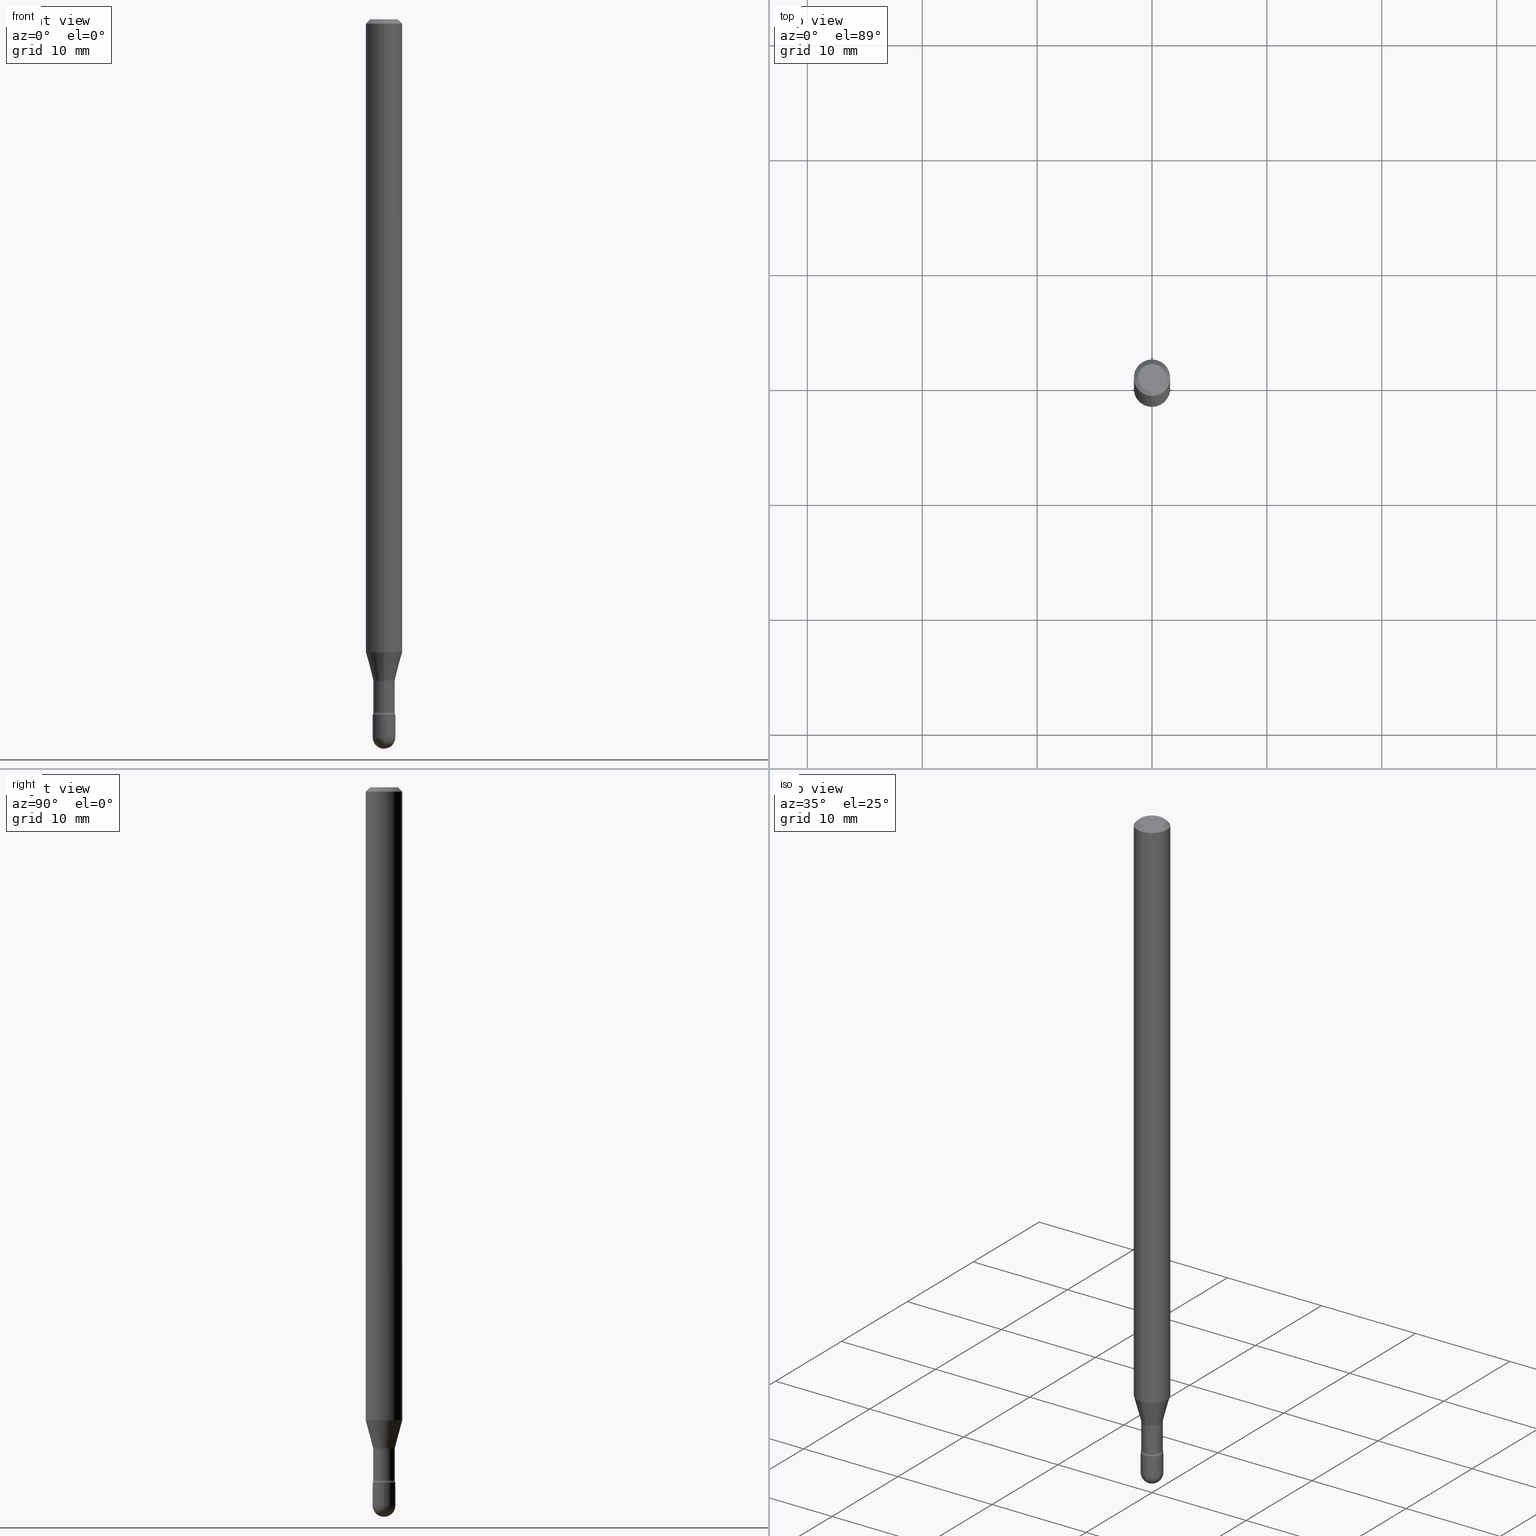
[diagram: canonical four-view strip — front | top / right | iso, engineering-drawing reading convention]
A machine part, canonical four-view strip (front | top / right | iso — engineering-drawing reading convention). The complete STEP part file that produces these views, byte-faithful:
ISO-10303-21;
HEADER;
FILE_DESCRIPTION (( 'STEP AP203' ),
    '1' );
FILE_NAME ('03822.STEP',
    '2024-04-09T20:36:44',
    ( '' ),
    ( '' ),
    'SwSTEP 2.0',
    'SolidWorks 2023',
    '' );
FILE_SCHEMA (( 'CONFIG_CONTROL_DESIGN' ));
ENDSEC;

DATA;
#1 = CYLINDRICAL_SURFACE ( 'NONE', #58, 0.06250000000000000000 ) ;
#2 = AXIS2_PLACEMENT_3D ( 'NONE', #217, #349, #523 ) ;
#3 = FACE_OUTER_BOUND ( 'NONE', #27, .T. ) ;
#4 = CARTESIAN_POINT ( 'NONE',  ( 0.03899999999999999994, -8.592535574892981353E-15, -2.383000000000000451 ) ) ;
#5 = DIRECTION ( 'NONE',  ( 6.982962677686265922E-15, 1.000000000000000000, 0.000000000000000000 ) ) ;
#6 = DIRECTION ( 'NONE',  ( -2.445434904435327590E-29, 3.491529888078439929E-15, 1.000000000000000000 ) ) ;
#7 = DIRECTION ( 'NONE',  ( 1.000000000000000000, -7.105427357601001070E-15, 4.926316103098738148E-29 ) ) ;
#8 = EDGE_LOOP ( 'NONE', ( #122, #476, #511, #38, #326 ) ) ;
#9 = CARTESIAN_POINT ( 'NONE',  ( 6.018298732021622035E-29, -8.592535574892982931E-15, -2.461000000000000298 ) ) ;
#10 = CARTESIAN_POINT ( 'NONE',  ( 6.018298732021622035E-29, -8.592535574892982931E-15, -2.461000000000000298 ) ) ;
#11 = CIRCLE ( 'NONE', #307, 0.03665000000000000202 ) ;
#12 = APPROVAL ( #236, 'UNSPECIFIED' ) ;
#13 = TOROIDAL_SURFACE ( 'NONE', #465, 0.05165000000000002228, 0.01499999999999999944 ) ;
#14 = CYLINDRICAL_SURFACE ( 'NONE', #214, 0.03899999999999999994 ) ;
#15 = DIRECTION ( 'NONE',  ( -2.445434904435327590E-29, 3.491529888078439535E-15, 1.000000000000000000 ) ) ;
#16 = DIRECTION ( 'NONE',  ( -2.445434904435327590E-29, 3.491529888078439929E-15, 1.000000000000000000 ) ) ;
#17 = DIRECTION ( 'NONE',  ( -6.982962677686266711E-15, -1.000000000000000000, 3.491529888078439929E-15 ) ) ;
#18 = LINE ( 'NONE', #61, #69 ) ;
#19 = AXIS2_PLACEMENT_3D ( 'NONE', #9, #126, #532 ) ;
#20 = ORGANIZATION ( 'UNSPECIFIED', 'UNSPECIFIED', '' ) ;
#21 = VERTEX_POINT ( 'NONE', #512 ) ;
#22 = EDGE_CURVE ( 'NONE', #282, #163, #403, .T. ) ;
#23 =( CONVERSION_BASED_UNIT ( 'INCH', #240 ) LENGTH_UNIT ( ) NAMED_UNIT ( #529 ) );
#24 = VERTEX_POINT ( 'NONE', #199 ) ;
#25 = ORIENTED_EDGE ( 'NONE', *, *, #493, .T. ) ;
#26 = CARTESIAN_POINT ( 'NONE',  ( 6.018298732021620914E-29, -8.592535574892981353E-15, -2.460999999999999854 ) ) ;
#27 = EDGE_LOOP ( 'NONE', ( #193, #505 ) ) ;
#28 = EDGE_LOOP ( 'NONE', ( #246, #423, #105, #556 ) ) ;
#29 = EDGE_CURVE ( 'NONE', #60, #460, #161, .T. ) ;
#30 = DIRECTION ( 'NONE',  ( 1.000000000000000000, 0.000000000000000000, 0.000000000000000000 ) ) ;
#31 = EDGE_LOOP ( 'NONE', ( #470, #284, #280, #376 ) ) ;
#32 = CIRCLE ( 'NONE', #241, 0.03665000000000002284 ) ;
#33 = AXIS2_PLACEMENT_3D ( 'NONE', #549, #15, #535 ) ;
#34 = DIRECTION ( 'NONE',  ( 1.000000000000000000, -6.982962677686282488E-15, 0.000000000000000000 ) ) ;
#35 = VERTEX_POINT ( 'NONE', #47 ) ;
#36 = AXIS2_PLACEMENT_3D ( 'NONE', #120, #419, #34 ) ;
#37 = CONICAL_SURFACE ( 'NONE', #520, 0.03716111260566398039, 0.2617993877991502405 ) ;
#38 = ORIENTED_EDGE ( 'NONE', *, *, #123, .F. ) ;
#39 = CARTESIAN_POINT ( 'NONE',  ( -4.364351673553387171E-16, -0.06250000000000760503, -2.169526486624344663 ) ) ;
#40 = DIRECTION ( 'NONE',  ( -2.445434904435327590E-29, 3.491529888078439929E-15, 1.000000000000000000 ) ) ;
#41 = FACE_OUTER_BOUND ( 'NONE', #230, .T. ) ;
#42 = AXIS2_PLACEMENT_3D ( 'NONE', #136, #133, #479 ) ;
#43 = CARTESIAN_POINT ( 'NONE',  ( 5.536690830740902119E-29, -7.905146639364552909E-15, -2.264092501787273282 ) ) ;
#44 = COORDINATED_UNIVERSAL_TIME_OFFSET ( 5, 0, .BEHIND. ) ;
#45 = CARTESIAN_POINT ( 'NONE',  ( 5.546184707643297071E-29, -7.918701755838243943E-15, -2.267974787463811204 ) ) ;
#46 = ORIENTED_EDGE ( 'NONE', *, *, #119, .F. ) ;
#47 = CARTESIAN_POINT ( 'NONE',  ( -0.03899999999999999994, -8.179256135731659234E-15, -2.383000000000000451 ) ) ;
#48 = DIRECTION ( 'NONE',  ( -2.445434904435327590E-29, 3.491529888078439535E-15, 1.000000000000000000 ) ) ;
#49 = CARTESIAN_POINT ( 'NONE',  ( 3.668152356653011563E-31, -5.237294832117688835E-17, -0.01500000000000008271 ) ) ;
#50 = CYLINDRICAL_SURFACE ( 'NONE', #2, 0.03665000000000000896 ) ;
#51 = DIRECTION ( 'NONE',  ( 6.982962677686265922E-15, 1.000000000000000000, 0.000000000000000000 ) ) ;
#52 = DIRECTION ( 'NONE',  ( -6.982962677686265133E-15, -1.000000000000000000, 0.000000000000000000 ) ) ;
#53 = AXIS2_PLACEMENT_3D ( 'NONE', #181, #497, #417 ) ;
#54 = DIRECTION ( 'NONE',  ( -2.445468806185136597E-29, 3.491481338843145583E-15, 1.000000000000000000 ) ) ;
#55 =( LENGTH_UNIT ( ) NAMED_UNIT ( * ) SI_UNIT ( $, .METRE. ) );
#56 = CARTESIAN_POINT ( 'NONE',  ( -3.773273898774340269E-16, -0.04749999999999999362, 8.310294370085693311E-17 ) ) ;
#57 = CARTESIAN_POINT ( 'NONE',  ( 5.546261595957115076E-29, -7.918591647396645864E-15, -2.267974787463811204 ) ) ;
#58 = AXIS2_PLACEMENT_3D ( 'NONE', #473, #297, #305 ) ;
#59 = VECTOR ( 'NONE', #494, 39.37007874015748143 ) ;
#60 = VERTEX_POINT ( 'NONE', #39 ) ;
#61 = CARTESIAN_POINT ( 'NONE',  ( 2.640455861472316653E-16, 0.03716111260565607699, -2.264092501787273282 ) ) ;
#62 = EDGE_CURVE ( 'NONE', #418, #65, #247, .T. ) ;
#63 = ORIENTED_EDGE ( 'NONE', *, *, #96, .T. ) ;
#64 = PERSON_AND_ORGANIZATION ( #88, #20 ) ;
#65 = VERTEX_POINT ( 'NONE', #167 ) ;
#66 = ORIENTED_EDGE ( 'NONE', *, *, #80, .F. ) ;
#67 = ORIENTED_EDGE ( 'NONE', *, *, #22, .T. ) ;
#68 = CLOSED_SHELL ( 'NONE', ( #534, #258, #544, #201, #137, #390, #185, #484, #184, #469, #367, #502, #555, #483 ) ) ;
#69 = VECTOR ( 'NONE', #269, 39.37007874015748143 ) ;
#70 = ORIENTED_EDGE ( 'NONE', *, *, #29, .F. ) ;
#71 = APPROVAL_STATUS ( 'not_yet_approved' ) ;
#72 = ORIENTED_EDGE ( 'NONE', *, *, #332, .F. ) ;
#73 = EDGE_CURVE ( 'NONE', #460, #60, #114, .T. ) ;
#74 = APPROVAL_ROLE ( '' ) ;
#75 = EDGE_CURVE ( 'NONE', #189, #35, #144, .T. ) ;
#76 = ORIENTED_EDGE ( 'NONE', *, *, #158, .F. ) ;
#77 = AXIS2_PLACEMENT_3D ( 'NONE', #264, #444, #51 ) ;
#78 = CIRCLE ( 'NONE', #323, 0.03900000000000000688 ) ;
#79 = DIRECTION ( 'NONE',  ( -2.445434904435327590E-29, 3.491529888078439535E-15, 1.000000000000000000 ) ) ;
#80 = EDGE_CURVE ( 'NONE', #235, #65, #11, .T. ) ;
#81 = CARTESIAN_POINT ( 'NONE',  ( 4.440892098500625669E-16, 0.06250000000000000000, 2.598527808863436170E-16 ) ) ;
#82 = DIRECTION ( 'NONE',  ( -2.445468806185136597E-29, 3.491481338843145583E-15, 1.000000000000000000 ) ) ;
#83 = CARTESIAN_POINT ( 'NONE',  ( 2.604139126560767818E-16, 0.03665000000000000896, 3.501088284931711933E-16 ) ) ;
#84 = FACE_OUTER_BOUND ( 'NONE', #566, .T. ) ;
#85 = CARTESIAN_POINT ( 'NONE',  ( -2.559255821371461762E-16, -0.03665000000000791930, -2.267974787463811204 ) ) ;
#86 = LOCAL_TIME ( 16, 36, 44.00000000000000000, #294 ) ;
#87 = CARTESIAN_POINT ( 'NONE',  ( 5.827552165139180878E-29, -8.320200030463215753E-15, -2.383000000000000451 ) ) ;
#88 = PERSON ( 'UNSPECIFIED', 'UNSPECIFIED', 'UNSPECIFIED', ('UNSPECIFIED'), ('UNSPECIFIED'), ('UNSPECIFIED') ) ;
#89 = FACE_OUTER_BOUND ( 'NONE', #164, .T. ) ;
#90 = CARTESIAN_POINT ( 'NONE',  ( 2.687627898013161054E-16, 0.03664999999999172392, -2.374939137763241614 ) ) ;
#91 = CARTESIAN_POINT ( 'NONE',  ( -2.594946623865928147E-16, -0.03716111260567189073, -2.264092501787273282 ) ) ;
#92 = SPHERICAL_SURFACE ( 'NONE', #77, 0.03899999999999989586 ) ;
#93 = FACE_OUTER_BOUND ( 'NONE', #154, .T. ) ;
#94 = CARTESIAN_POINT ( 'NONE',  ( 4.440892098501160615E-16, 0.06249999999999995837, -0.01500000000000030129 ) ) ;
#95 = AXIS2_PLACEMENT_3D ( 'NONE', #434, #478, #308 ) ;
#96 = EDGE_CURVE ( 'NONE', #203, #163, #393, .T. ) ;
#97 = CARTESIAN_POINT ( 'NONE',  ( -1.169113584055446105E-44, 1.669184350826100908E-30, 4.780733988912460139E-16 ) ) ;
#98 = CARTESIAN_POINT ( 'NONE',  ( 5.536690830740902119E-29, -7.905146639364552909E-15, -2.264092501787273282 ) ) ;
#99 = DIRECTION ( 'NONE',  ( -2.445434904435327590E-29, 3.491529888078439535E-15, 1.000000000000000000 ) ) ;
#100 = PERSON_AND_ORGANIZATION ( #88, #20 ) ;
#101 = ORIENTED_EDGE ( 'NONE', *, *, #546, .F. ) ;
#102 = FACE_OUTER_BOUND ( 'NONE', #464, .T. ) ;
#103 = PERSON_AND_ORGANIZATION ( #88, #20 ) ;
#104 = AXIS2_PLACEMENT_3D ( 'NONE', #260, #396, #440 ) ;
#105 = ORIENTED_EDGE ( 'NONE', *, *, #254, .T. ) ;
#106 = LOCAL_TIME ( 16, 36, 44.00000000000000000, #428 ) ;
#107 = CC_DESIGN_PERSON_AND_ORGANIZATION_ASSIGNMENT ( #559, #435, ( #449 ) ) ;
#108 = DIRECTION ( 'NONE',  ( -2.445434904435327590E-29, 3.491529888078439535E-15, 1.000000000000000000 ) ) ;
#109 = APPROVAL_ROLE ( '' ) ;
#110 = EDGE_LOOP ( 'NONE', ( #386, #238, #70, #374 ) ) ;
#111 = ORIENTED_EDGE ( 'NONE', *, *, #408, .F. ) ;
#112 = EDGE_LOOP ( 'NONE', ( #334, #128, #415, #379 ) ) ;
#113 = ORIENTED_EDGE ( 'NONE', *, *, #346, .F. ) ;
#114 = CIRCLE ( 'NONE', #552, 0.06250000000000000000 ) ;
#115 = ORIENTED_EDGE ( 'NONE', *, *, #461, .F. ) ;
#116 = TOROIDAL_SURFACE ( 'NONE', #196, 0.05165000000000002228, 0.01499999999999999944 ) ;
#117 = ORIENTED_EDGE ( 'NONE', *, *, #385, .F. ) ;
#118 = APPROVAL_STATUS ( 'not_yet_approved' ) ;
#119 = EDGE_CURVE ( 'NONE', #420, #127, #342, .T. ) ;
#120 = CARTESIAN_POINT ( 'NONE',  ( 6.018298732021620914E-29, -8.592535574892981353E-15, -2.460999999999999854 ) ) ;
#121 = PERSON_AND_ORGANIZATION ( #88, #20 ) ;
#122 = ORIENTED_EDGE ( 'NONE', *, *, #548, .T. ) ;
#123 = EDGE_CURVE ( 'NONE', #292, #189, #259, .T. ) ;
#124 = VECTOR ( 'NONE', #6, 39.37007874015748143 ) ;
#125 = CIRCLE ( 'NONE', #501, 0.03665000000000000202 ) ;
#126 = DIRECTION ( 'NONE',  ( -1.000000000000000000, 7.105427357601001070E-15, -4.926315508542082329E-29 ) ) ;
#127 = VERTEX_POINT ( 'NONE', #527 ) ;
#128 = ORIENTED_EDGE ( 'NONE', *, *, #281, .F. ) ;
#129 = DIRECTION ( 'NONE',  ( 1.000000000000000000, -6.982962677686258033E-15, 0.000000000000000000 ) ) ;
#130 = DIRECTION ( 'NONE',  ( -6.982962677686265133E-15, -1.000000000000000000, 0.000000000000000000 ) ) ;
#131 = DIRECTION ( 'NONE',  ( -2.445434904435327590E-29, 3.491529888078439535E-15, 1.000000000000000000 ) ) ;
#132 = DIRECTION ( 'NONE',  ( 6.982962677686265922E-15, 1.000000000000000000, 0.000000000000000000 ) ) ;
#133 = DIRECTION ( 'NONE',  ( -2.445434904435327590E-29, 3.491529888078439535E-15, 1.000000000000000000 ) ) ;
#134 = LINE ( 'NONE', #81, #124 ) ;
#135 = VECTOR ( 'NONE', #251, 39.37007874015748143 ) ;
#136 = CARTESIAN_POINT ( 'NONE',  ( 5.827471377269386118E-29, -8.320315723290922059E-15, -2.383000000000000451 ) ) ;
#137 = ADVANCED_FACE ( 'NONE', ( #302 ), #1, .T. ) ;
#138 = DIRECTION ( 'NONE',  ( -6.982962677686265133E-15, -1.000000000000000000, 0.000000000000000000 ) ) ;
#139 = DIRECTION ( 'NONE',  ( 1.000000000000000000, -6.982962677686282488E-15, 0.000000000000000000 ) ) ;
#140 = CARTESIAN_POINT ( 'NONE',  ( -4.364351673553912750E-16, -0.06250000000000005551, -0.01499999999999986587 ) ) ;
#141 = EDGE_CURVE ( 'NONE', #21, #235, #528, .T. ) ;
#142 = AXIS2_PLACEMENT_3D ( 'NONE', #522, #79, #138 ) ;
#143 = DIRECTION ( 'NONE',  ( -6.982962677686265922E-15, -1.000000000000000000, 3.491529888078439535E-15 ) ) ;
#144 = CIRCLE ( 'NONE', #412, 0.03899999999999999994 ) ;
#145 = AXIS2_PLACEMENT_3D ( 'NONE', #411, #226, #366 ) ;
#146 =( NAMED_UNIT ( * ) PLANE_ANGLE_UNIT ( ) SI_UNIT ( $, .RADIAN. ) );
#147 = ORIENTED_EDGE ( 'NONE', *, *, #119, .T. ) ;
#148 = DIRECTION ( 'NONE',  ( -6.982962677686265922E-15, -1.000000000000000000, 3.491529888078439535E-15 ) ) ;
#149 = MECHANICAL_CONTEXT ( 'NONE', #391, 'mechanical' ) ;
#150 = CARTESIAN_POINT ( 'NONE',  ( 4.364351673553919652E-16, 0.06249999999999995143, -0.01500000000000030129 ) ) ;
#151 = DIRECTION ( 'NONE',  ( -6.982962677686266711E-15, -1.000000000000000000, 3.491529888078439929E-15 ) ) ;
#152 = VECTOR ( 'NONE', #306, 39.37007874015748143 ) ;
#153 = AXIS2_PLACEMENT_3D ( 'NONE', #10, #303, #132 ) ;
#154 = EDGE_LOOP ( 'NONE', ( #468, #188, #66, #157 ) ) ;
#155 = ORIENTED_EDGE ( 'NONE', *, *, #273, .F. ) ;
#156 = ORIENTED_EDGE ( 'NONE', *, *, #346, .T. ) ;
#157 = ORIENTED_EDGE ( 'NONE', *, *, #359, .F. ) ;
#158 = EDGE_CURVE ( 'NONE', #460, #542, #134, .T. ) ;
#159 = ORIENTED_EDGE ( 'NONE', *, *, #166, .T. ) ;
#160 = CALENDAR_DATE ( 2024, 9, 4 ) ;
#161 = CIRCLE ( 'NONE', #195, 0.06250000000000000000 ) ;
#162 = AXIS2_PLACEMENT_3D ( 'NONE', #170, #486, #352 ) ;
#163 = VERTEX_POINT ( 'NONE', #388 ) ;
#164 = EDGE_LOOP ( 'NONE', ( #382, #244, #243, #156 ) ) ;
#165 = ORIENTED_EDGE ( 'NONE', *, *, #363, .T. ) ;
#166 = EDGE_CURVE ( 'NONE', #561, #542, #274, .T. ) ;
#167 = CARTESIAN_POINT ( 'NONE',  ( 2.604139126561349110E-16, 0.03664999999999209168, -2.267974787463811204 ) ) ;
#168 = CIRCLE ( 'NONE', #540, 0.03716111260566398039 ) ;
#169 = DIRECTION ( 'NONE',  ( 2.445434904435327590E-29, -3.491529888078439535E-15, -1.000000000000000000 ) ) ;
#170 = CARTESIAN_POINT ( 'NONE',  ( 5.827552165139180878E-29, -8.320200030463215753E-15, -2.383000000000000451 ) ) ;
#171 = LINE ( 'NONE', #443, #539 ) ;
#172 = DIRECTION ( 'NONE',  ( 1.000000000000000000, -7.105427357601001070E-15, 4.926316103098738148E-29 ) ) ;
#173 = DIRECTION ( 'NONE',  ( -2.445468806185136877E-29, 3.491481338843145188E-15, 1.000000000000000000 ) ) ;
#174 = DIRECTION ( 'NONE',  ( -6.982962677686265922E-15, -1.000000000000000000, 4.370956789862821150E-15 ) ) ;
#175 = DIRECTION ( 'NONE',  ( 7.105427357601001859E-15, 1.000000000000000000, 0.000000000000000000 ) ) ;
#176 = AXIS2_PLACEMENT_3D ( 'NONE', #49, #221, #357 ) ;
#177 = CARTESIAN_POINT ( 'NONE',  ( 5.827552165139180878E-29, -8.320200030463215753E-15, -2.383000000000000451 ) ) ;
#178 = AXIS2_PLACEMENT_3D ( 'NONE', #347, #48, #536 ) ;
#179 = APPROVAL_PERSON_ORGANIZATION ( #432, #409, #74 ) ;
#180 = DIRECTION ( 'NONE',  ( -2.445434904435327590E-29, 3.491529888078439535E-15, 1.000000000000000000 ) ) ;
#181 = CARTESIAN_POINT ( 'NONE',  ( -3.606700223024377708E-16, -0.05165000000000831426, -2.374939137763241614 ) ) ;
#182 = CARTESIAN_POINT ( 'NONE',  ( 6.018298732021620914E-29, -8.592535574892981353E-15, -2.460999999999999854 ) ) ;
#183 = EDGE_CURVE ( 'NONE', #420, #65, #485, .T. ) ;
#184 = ADVANCED_FACE ( 'NONE', ( #89 ), #463, .T. ) ;
#185 = ADVANCED_FACE ( 'NONE', ( #345 ), #517, .T. ) ;
#186 = FACE_OUTER_BOUND ( 'NONE', #328, .T. ) ;
#187 = DIRECTION ( 'NONE',  ( -2.445434904435327590E-29, 3.491529888078439535E-15, 1.000000000000000000 ) ) ;
#188 = ORIENTED_EDGE ( 'NONE', *, *, #183, .T. ) ;
#189 = VERTEX_POINT ( 'NONE', #4 ) ;
#190 = DIRECTION ( 'NONE',  ( -2.445434904435327590E-29, 3.491529888078439535E-15, 1.000000000000000000 ) ) ;
#191 = ORIENTED_EDGE ( 'NONE', *, *, #442, .T. ) ;
#192 = CYLINDRICAL_SURFACE ( 'NONE', #33, 0.03665000000000000896 ) ;
#193 = ORIENTED_EDGE ( 'NONE', *, *, #75, .T. ) ;
#194 = VERTEX_POINT ( 'NONE', #348 ) ;
#195 = AXIS2_PLACEMENT_3D ( 'NONE', #208, #400, #174 ) ;
#196 = AXIS2_PLACEMENT_3D ( 'NONE', #503, #275, #360 ) ;
#197 = EDGE_LOOP ( 'NONE', ( #46, #165, #378, #369 ) ) ;
#198 = CC_DESIGN_SECURITY_CLASSIFICATION ( #449, ( #436 ) ) ;
#199 = CARTESIAN_POINT ( 'NONE',  ( -2.723355444297060911E-16, -0.03900000000000831274, -2.383000000000000451 ) ) ;
#200 = EDGE_LOOP ( 'NONE', ( #557, #25, #159, #111 ) ) ;
#201 = ADVANCED_FACE ( 'NONE', ( #524 ), #427, .T. ) ;
#202 = ORIENTED_EDGE ( 'NONE', *, *, #442, .F. ) ;
#203 = VERTEX_POINT ( 'NONE', #249 ) ;
#204 = DATE_AND_TIME ( #207, #86 ) ;
#205 = AXIS2_PLACEMENT_3D ( 'NONE', #231, #187, #148 ) ;
#206 = EDGE_LOOP ( 'NONE', ( #202, #63, #554, #558 ) ) ;
#207 = CALENDAR_DATE ( 2024, 9, 4 ) ;
#208 = CARTESIAN_POINT ( 'NONE',  ( 5.305435796488117338E-29, -7.574966571026710288E-15, -2.169526486624345107 ) ) ;
#209 = DATE_AND_TIME ( #160, #331 ) ;
#210 = CARTESIAN_POINT ( 'NONE',  ( 3.668152356653011563E-31, -5.237294832117688835E-17, -0.01500000000000008271 ) ) ;
#211 = APPROVAL_DATE_TIME ( #204, #12 ) ;
#212 = CARTESIAN_POINT ( 'NONE',  ( 2.723355444298225960E-16, 0.03899999999999167327, -2.383000000000000451 ) ) ;
#213 = AXIS2_PLACEMENT_3D ( 'NONE', #87, #54, #446 ) ;
#214 = AXIS2_PLACEMENT_3D ( 'NONE', #312, #263, #533 ) ;
#215 = LOCAL_TIME ( 16, 36, 44.00000000000000000, #509 ) ;
#216 = DIRECTION ( 'NONE',  ( -2.445468806185136597E-29, 3.491481338843145583E-15, 1.000000000000000000 ) ) ;
#217 = CARTESIAN_POINT ( 'NONE',  ( -1.169113584055446105E-44, 1.669184350826100908E-30, 4.780733988912460139E-16 ) ) ;
#218 = DIRECTION ( 'NONE',  ( -2.445468806185136877E-29, 3.491481338843145188E-15, 1.000000000000000000 ) ) ;
#219 = CARTESIAN_POINT ( 'NONE',  ( 4.440892098501153712E-16, 0.06249999999999239497, -2.169526486624345107 ) ) ;
#220 = CARTESIAN_POINT ( 'NONE',  ( -2.559255821372017416E-16, -0.03665000000000000896, 6.060379692893209824E-16 ) ) ;
#221 = DIRECTION ( 'NONE',  ( 2.445434904435327590E-29, -3.491529888078439535E-15, -1.000000000000000000 ) ) ;
#222 = CARTESIAN_POINT ( 'NONE',  ( 6.018298732021622035E-29, -8.592535574892982931E-15, -2.461000000000000298 ) ) ;
#223 = AXIS2_PLACEMENT_3D ( 'NONE', #506, #380, #30 ) ;
#224 = CARTESIAN_POINT ( 'NONE',  ( -4.287811248607203282E-16, -0.06250000000000005551, -0.01499999999999986587 ) ) ;
#225 = LINE ( 'NONE', #91, #152 ) ;
#226 = DIRECTION ( 'NONE',  ( 2.445434904435327309E-29, -3.491529888078439929E-15, -1.000000000000000000 ) ) ;
#227 = VECTOR ( 'NONE', #40, 39.37007874015748143 ) ;
#228 = CIRCLE ( 'NONE', #153, 0.03899999999999989586 ) ;
#229 = PRODUCT_DEFINITION ( 'UNKNOWN', '', #436, #467 ) ;
#230 = EDGE_LOOP ( 'NONE', ( #115, #72 ) ) ;
#231 = CARTESIAN_POINT ( 'NONE',  ( 5.546261595957115076E-29, -7.918591647396645864E-15, -2.267974787463811204 ) ) ;
#232 = PERSON_AND_ORGANIZATION_ROLE ( 'creator' ) ;
#233 = ADVANCED_FACE ( 'NONE', ( #430 ), #92, .T. ) ;
#234 = ORIENTED_EDGE ( 'NONE', *, *, #183, .F. ) ;
#235 = VERTEX_POINT ( 'NONE', #85 ) ;
#236 = APPROVAL_STATUS ( 'not_yet_approved' ) ;
#237 = ORIENTED_EDGE ( 'NONE', *, *, #166, .F. ) ;
#238 = ORIENTED_EDGE ( 'NONE', *, *, #490, .T. ) ;
#239 = EDGE_CURVE ( 'NONE', #60, #561, #311, .T. ) ;
#240 = LENGTH_MEASURE_WITH_UNIT ( LENGTH_MEASURE( 0.02539999999999999897 ), #55 );
#241 = AXIS2_PLACEMENT_3D ( 'NONE', #255, #358, #130 ) ;
#242 = AXIS2_PLACEMENT_3D ( 'NONE', #399, #7, #175 ) ;
#243 = ORIENTED_EDGE ( 'NONE', *, *, #408, .T. ) ;
#244 = ORIENTED_EDGE ( 'NONE', *, *, #466, .F. ) ;
#245 = PERSON_AND_ORGANIZATION_ROLE ( 'creator' ) ;
#246 = ORIENTED_EDGE ( 'NONE', *, *, #490, .F. ) ;
#247 = CIRCLE ( 'NONE', #315, 0.01500000000000002720 ) ;
#248 = AXIS2_PLACEMENT_3D ( 'NONE', #97, #492, #499 ) ;
#249 = CARTESIAN_POINT ( 'NONE',  ( 6.115339589726742112E-29, -8.726315285849528478E-15, -2.500000000000000000 ) ) ;
#250 = CARTESIAN_POINT ( 'NONE',  ( 0.03899999999999999994, -2.723355444297643682E-16, 1.901708942560414931E-30 ) ) ;
#251 = DIRECTION ( 'NONE',  ( -2.445434904435327590E-29, 3.491529888078439929E-15, 1.000000000000000000 ) ) ;
#252 = DIRECTION ( 'NONE',  ( -2.445434904435327590E-29, 3.491529888078439535E-15, 1.000000000000000000 ) ) ;
#253 = APPROVAL_ROLE ( '' ) ;
#254 = EDGE_CURVE ( 'NONE', #21, #60, #225, .T. ) ;
#255 = CARTESIAN_POINT ( 'NONE',  ( 5.807759063395773284E-29, -8.292170981867597254E-15, -2.374939137763241614 ) ) ;
#256 = EDGE_CURVE ( 'NONE', #292, #545, #295, .T. ) ;
#257 = CIRCLE ( 'NONE', #356, 0.04749999999999999362 ) ;
#258 = ADVANCED_FACE ( 'NONE', ( #93 ), #50, .T. ) ;
#259 = LINE ( 'NONE', #250, #329 ) ;
#260 = CARTESIAN_POINT ( 'NONE',  ( 5.536690830740902119E-29, -7.905146639364552909E-15, -2.264092501787273282 ) ) ;
#261 = DIRECTION ( 'NONE',  ( 6.982962677686265922E-15, 1.000000000000000000, -3.483106191921935554E-15 ) ) ;
#262 = DIRECTION ( 'NONE',  ( -6.982962677686264344E-15, -1.000000000000000000, 0.000000000000000000 ) ) ;
#263 = DIRECTION ( 'NONE',  ( -2.445468806185136597E-29, 3.491481338843145583E-15, 1.000000000000000000 ) ) ;
#264 = CARTESIAN_POINT ( 'NONE',  ( 6.018298732021622035E-29, -8.592535574892982931E-15, -2.461000000000000298 ) ) ;
#265 = ADVANCED_FACE ( 'NONE', ( #84 ), #394, .T. ) ;
#266 = FACE_OUTER_BOUND ( 'NONE', #110, .T. ) ;
#267 = VECTOR ( 'NONE', #16, 39.37007874015748143 ) ;
#268 = CIRCLE ( 'NONE', #296, 0.03900000000000000688 ) ;
#269 = DIRECTION ( 'NONE',  ( 1.839019923739599921E-15, 0.2588190451025249028, 0.9659258262890670910 ) ) ;
#270 = DIRECTION ( 'NONE',  ( 1.000000000000000000, -6.982962677686282488E-15, 0.000000000000000000 ) ) ;
#271 = DATE_AND_TIME ( #287, #215 ) ;
#272 = EDGE_LOOP ( 'NONE', ( #76, #285, #368, #113 ) ) ;
#273 = EDGE_CURVE ( 'NONE', #35, #189, #495, .T. ) ;
#274 = CIRCLE ( 'NONE', #95, 0.06250000000000000000 ) ;
#275 = DIRECTION ( 'NONE',  ( -2.445434904435327590E-29, 3.491529888078439535E-15, 1.000000000000000000 ) ) ;
#276 = CIRCLE ( 'NONE', #384, 0.04749999999999999362 ) ;
#277 = COORDINATED_UNIVERSAL_TIME_OFFSET ( 5, 0, .BEHIND. ) ;
#278 = FACE_OUTER_BOUND ( 'NONE', #197, .T. ) ;
#279 =( NAMED_UNIT ( * ) SI_UNIT ( $, .STERADIAN. ) SOLID_ANGLE_UNIT ( ) );
#280 = ORIENTED_EDGE ( 'NONE', *, *, #385, .T. ) ;
#281 = EDGE_CURVE ( 'NONE', #127, #420, #32, .T. ) ;
#282 = VERTEX_POINT ( 'NONE', #406 ) ;
#283 = APPLICATION_PROTOCOL_DEFINITION ( 'international standard', 'config_control_design', 1994, #391 ) ;
#284 = ORIENTED_EDGE ( 'NONE', *, *, #62, .T. ) ;
#285 = ORIENTED_EDGE ( 'NONE', *, *, #73, .T. ) ;
#286 = CIRCLE ( 'NONE', #42, 0.03899999999999999994 ) ;
#287 = CALENDAR_DATE ( 2024, 9, 4 ) ;
#288 = CC_DESIGN_APPROVAL ( #498, ( #229 ) ) ;
#289 = CC_DESIGN_APPROVAL ( #12, ( #436 ) ) ;
#290 = ORIENTED_EDGE ( 'NONE', *, *, #291, .F. ) ;
#291 = EDGE_CURVE ( 'NONE', #282, #35, #171, .T. ) ;
#292 = VERTEX_POINT ( 'NONE', #477 ) ;
#293 = VERTEX_POINT ( 'NONE', #526 ) ;
#294 = COORDINATED_UNIVERSAL_TIME_OFFSET ( 5, 0, .BEHIND. ) ;
#295 = CIRCLE ( 'NONE', #447, 0.03900000000000000688 ) ;
#296 = AXIS2_PLACEMENT_3D ( 'NONE', #319, #405, #270 ) ;
#297 = DIRECTION ( 'NONE',  ( -2.445434904435327590E-29, 3.491529888078439535E-15, 1.000000000000000000 ) ) ;
#298 = MANIFOLD_SOLID_BREP ( 'Body-Move/Copy2[2]', #68 ) ;
#299 = ORIENTED_EDGE ( 'NONE', *, *, #80, .T. ) ;
#300 = LINE ( 'NONE', #220, #135 ) ;
#301 = PRODUCT_RELATED_PRODUCT_CATEGORY ( 'detail', '', ( #508 ) ) ;
#302 = FACE_OUTER_BOUND ( 'NONE', #350, .T. ) ;
#303 = DIRECTION ( 'NONE',  ( 1.000000000000000000, -6.982962677686265922E-15, 4.883557194083112340E-29 ) ) ;
#304 = FACE_OUTER_BOUND ( 'NONE', #8, .T. ) ;
#305 = DIRECTION ( 'NONE',  ( -6.982962677686265922E-15, -1.000000000000000000, 3.491529888078439140E-15 ) ) ;
#306 = DIRECTION ( 'NONE',  ( -1.807323732225329745E-15, -0.2588190451025181305, 0.9659258262890689783 ) ) ;
#307 = AXIS2_PLACEMENT_3D ( 'NONE', #516, #252, #392 ) ;
#308 = DIRECTION ( 'NONE',  ( -6.982962677686265922E-15, -1.000000000000000000, 3.483106191921935554E-15 ) ) ;
#309 = CARTESIAN_POINT ( 'NONE',  ( 3.540673979986737155E-16, 0.03716111260565607699, -2.264092501787273282 ) ) ;
#310 = PLANE ( 'NONE',  #375 ) ;
#311 = LINE ( 'NONE', #488, #267 ) ;
#312 = CARTESIAN_POINT ( 'NONE',  ( 0.000000000000000000, 0.000000000000000000, 0.000000000000000000 ) ) ;
#313 = FACE_OUTER_BOUND ( 'NONE', #272, .T. ) ;
#314 = LINE ( 'NONE', #150, #59 ) ;
#315 = AXIS2_PLACEMENT_3D ( 'NONE', #431, #172, #565 ) ;
#316 = APPROVAL_PERSON_ORGANIZATION ( #500, #498, #109 ) ;
#317 = CARTESIAN_POINT ( 'NONE',  ( 2.723355444298241737E-16, 0.03899999999999136102, -2.460999999999999854 ) ) ;
#318 = DIRECTION ( 'NONE',  ( -4.851104656540964275E-15, -0.7071067811865500152, -0.7071067811865450192 ) ) ;
#319 = CARTESIAN_POINT ( 'NONE',  ( 6.018298732021620914E-29, -8.592535574892981353E-15, -2.460999999999999854 ) ) ;
#320 = APPLICATION_PROTOCOL_DEFINITION ( 'international standard', 'config_control_design', 1994, #336 ) ;
#321 = AXIS2_PLACEMENT_3D ( 'NONE', #43, #441, #395 ) ;
#322 = DIRECTION ( 'NONE',  ( -2.445434904435327590E-29, 3.491529888078439535E-15, 1.000000000000000000 ) ) ;
#323 = AXIS2_PLACEMENT_3D ( 'NONE', #26, #458, #371 ) ;
#324 = CC_DESIGN_APPROVAL ( #409, ( #449 ) ) ;
#325 = ORIENTED_EDGE ( 'NONE', *, *, #439, .F. ) ;
#326 = ORIENTED_EDGE ( 'NONE', *, *, #256, .T. ) ;
#327 = ORIENTED_EDGE ( 'NONE', *, *, #546, .T. ) ;
#328 = EDGE_LOOP ( 'NONE', ( #422, #426 ) ) ;
#329 = VECTOR ( 'NONE', #218, 39.37007874015748143 ) ;
#330 = APPROVAL_PERSON_ORGANIZATION ( #64, #12, #253 ) ;
#331 = LOCAL_TIME ( 16, 36, 44.00000000000000000, #44 ) ;
#332 = EDGE_CURVE ( 'NONE', #293, #24, #286, .T. ) ;
#333 = CC_DESIGN_PERSON_AND_ORGANIZATION_ASSIGNMENT ( #100, #421, ( #508 ) ) ;
#334 = ORIENTED_EDGE ( 'NONE', *, *, #363, .F. ) ;
#335 = EDGE_CURVE ( 'NONE', #418, #21, #364, .T. ) ;
#336 = APPLICATION_CONTEXT ( 'configuration controlled 3d designs of mechanical parts and assemblies' ) ;
#337 = ORIENTED_EDGE ( 'NONE', *, *, #158, .T. ) ;
#338 = DATE_AND_TIME ( #387, #106 ) ;
#339 = CARTESIAN_POINT ( 'NONE',  ( 5.305435796488117338E-29, -7.574966571026710288E-15, -2.169526486624345107 ) ) ;
#340 = SECURITY_CLASSIFICATION_LEVEL ( 'unclassified' ) ;
#341 = CARTESIAN_POINT ( 'NONE',  ( 5.827471377269386118E-29, -8.320315723290922059E-15, -2.383000000000000451 ) ) ;
#342 = CIRCLE ( 'NONE', #142, 0.03665000000000002284 ) ;
#343 = AXIS2_PLACEMENT_3D ( 'NONE', #437, #402, #433 ) ;
#344 = ADVANCED_FACE ( 'NONE', ( #304 ), #361, .T. ) ;
#345 = FACE_OUTER_BOUND ( 'NONE', #28, .T. ) ;
#346 = EDGE_CURVE ( 'NONE', #542, #561, #481, .T. ) ;
#347 = CARTESIAN_POINT ( 'NONE',  ( 3.668152356653011563E-31, -5.237294832117688835E-17, -0.01500000000000008271 ) ) ;
#348 = CARTESIAN_POINT ( 'NONE',  ( 3.840629472727447874E-16, 0.04749999999999999362, -2.485923956665947867E-16 ) ) ;
#349 = DIRECTION ( 'NONE',  ( -2.445434904435327590E-29, 3.491529888078439535E-15, 1.000000000000000000 ) ) ;
#350 = EDGE_LOOP ( 'NONE', ( #416, #337, #237, #507 ) ) ;
#351 = CARTESIAN_POINT ( 'NONE',  ( -3.606700223024402360E-16, -0.05165000000000792568, -2.267974787463810760 ) ) ;
#352 = DIRECTION ( 'NONE',  ( 1.000000000000000000, -6.982962677686265922E-15, 4.876176775795935793E-29 ) ) ;
#353 = DIRECTION ( 'NONE',  ( -2.445434904435327309E-29, 3.491529888078439929E-15, 1.000000000000000000 ) ) ;
#354 = CC_DESIGN_PERSON_AND_ORGANIZATION_ASSIGNMENT ( #103, #232, ( #229 ) ) ;
#355 = AXIS2_PLACEMENT_3D ( 'NONE', #210, #169, #261 ) ;
#356 = AXIS2_PLACEMENT_3D ( 'NONE', #538, #99, #17 ) ;
#357 = DIRECTION ( 'NONE',  ( 6.982962677686265922E-15, 1.000000000000000000, -3.483106191921935554E-15 ) ) ;
#358 = DIRECTION ( 'NONE',  ( -2.445434904435327590E-29, 3.491529888078439535E-15, 1.000000000000000000 ) ) ;
#359 = EDGE_CURVE ( 'NONE', #127, #235, #300, .T. ) ;
#360 = DIRECTION ( 'NONE',  ( -6.982962677686265922E-15, -1.000000000000000000, 3.491529888078439535E-15 ) ) ;
#361 = CYLINDRICAL_SURFACE ( 'NONE', #343, 0.03899999999999999994 ) ;
#362 = DIRECTION ( 'NONE',  ( -6.982962677686265922E-15, -1.000000000000000000, 3.491529888078439535E-15 ) ) ;
#363 = EDGE_CURVE ( 'NONE', #420, #293, #429, .T. ) ;
#364 = CIRCLE ( 'NONE', #104, 0.03716111260566398039 ) ;
#365 = LOCAL_TIME ( 16, 36, 44.00000000000000000, #277 ) ;
#366 = DIRECTION ( 'NONE',  ( 6.982962677686265922E-15, 1.000000000000000000, -3.491529888078439929E-15 ) ) ;
#367 = ADVANCED_FACE ( 'NONE', ( #41 ), #310, .F. ) ;
#368 = ORIENTED_EDGE ( 'NONE', *, *, #239, .T. ) ;
#369 = ORIENTED_EDGE ( 'NONE', *, *, #513, .F. ) ;
#370 = LINE ( 'NONE', #224, #455 ) ;
#371 = DIRECTION ( 'NONE',  ( 1.000000000000000000, -6.982962677686282488E-15, 0.000000000000000000 ) ) ;
#372 = DATE_AND_TIME ( #457, #365 ) ;
#373 = AXIS2_PLACEMENT_3D ( 'NONE', #222, #482, #5 ) ;
#374 = ORIENTED_EDGE ( 'NONE', *, *, #254, .F. ) ;
#375 = AXIS2_PLACEMENT_3D ( 'NONE', #212, #353, #531 ) ;
#376 = ORIENTED_EDGE ( 'NONE', *, *, #141, .F. ) ;
#377 = ORIENTED_EDGE ( 'NONE', *, *, #141, .T. ) ;
#378 = ORIENTED_EDGE ( 'NONE', *, *, #332, .T. ) ;
#379 = ORIENTED_EDGE ( 'NONE', *, *, #461, .T. ) ;
#380 = DIRECTION ( 'NONE',  ( 0.000000000000000000, 0.000000000000000000, 1.000000000000000000 ) ) ;
#381 = PRODUCT_DEFINITION_SHAPE ( 'NONE', 'NONE',  #229 ) ;
#382 = ORIENTED_EDGE ( 'NONE', *, *, #493, .F. ) ;
#383 = ADVANCED_FACE ( 'NONE', ( #487 ), #14, .T. ) ;
#384 = AXIS2_PLACEMENT_3D ( 'NONE', #496, #322, #151 ) ;
#385 = EDGE_CURVE ( 'NONE', #65, #235, #125, .T. ) ;
#386 = ORIENTED_EDGE ( 'NONE', *, *, #439, .T. ) ;
#387 = CALENDAR_DATE ( 2024, 9, 4 ) ;
#388 = CARTESIAN_POINT ( 'NONE',  ( -2.771116669463785270E-16, -0.03900000000000854866, -2.460999999999999854 ) ) ;
#389 = PERSON_AND_ORGANIZATION ( #88, #20 ) ;
#390 = ADVANCED_FACE ( 'NONE', ( #266 ), #37, .T. ) ;
#391 = APPLICATION_CONTEXT ( 'configuration controlled 3d designs of mechanical parts and assemblies' ) ;
#392 = DIRECTION ( 'NONE',  ( -6.982962677686265133E-15, -1.000000000000000000, 0.000000000000000000 ) ) ;
#393 = CIRCLE ( 'NONE', #19, 0.03899999999999989586 ) ;
#394 = SPHERICAL_SURFACE ( 'NONE', #373, 0.03899999999999989586 ) ;
#395 = DIRECTION ( 'NONE',  ( -6.982962677686265133E-15, -1.000000000000000000, 0.000000000000000000 ) ) ;
#396 = DIRECTION ( 'NONE',  ( -2.445434904435327590E-29, 3.491529888078439535E-15, 1.000000000000000000 ) ) ;
#397 = DIRECTION ( 'NONE',  ( -1.000000000000000000, 6.982962677686265922E-15, -4.883557194083112340E-29 ) ) ;
#398 = CC_DESIGN_PERSON_AND_ORGANIZATION_ASSIGNMENT ( #121, #564, ( #436 ) ) ;
#399 = CARTESIAN_POINT ( 'NONE',  ( 3.669953230201498856E-16, 0.05164999999999173030, -2.374939137763242059 ) ) ;
#400 = DIRECTION ( 'NONE',  ( -2.445434904435327590E-29, 3.491529888078439535E-15, 1.000000000000000000 ) ) ;
#401 = PLANE ( 'NONE',  #162 ) ;
#402 = DIRECTION ( 'NONE',  ( -2.445468806185136597E-29, 3.491481338843145583E-15, 1.000000000000000000 ) ) ;
#403 = CIRCLE ( 'NONE', #36, 0.03900000000000000688 ) ;
#404 =( GEOMETRIC_REPRESENTATION_CONTEXT ( 3 ) GLOBAL_UNCERTAINTY_ASSIGNED_CONTEXT ( ( #471 ) ) GLOBAL_UNIT_ASSIGNED_CONTEXT ( ( #23, #146, #279 ) ) REPRESENTATION_CONTEXT ( 'NONE', 'WORKASPACE' ) );
#405 = DIRECTION ( 'NONE',  ( -2.445468806185136597E-29, 3.491481338843145583E-15, 1.000000000000000000 ) ) ;
#406 = CARTESIAN_POINT ( 'NONE',  ( -0.03900000000000000688, -8.179256135731659234E-15, -2.460999999999999854 ) ) ;
#407 = PLANE ( 'NONE',  #145 ) ;
#408 = EDGE_CURVE ( 'NONE', #194, #542, #314, .T. ) ;
#409 = APPROVAL ( #118, 'UNSPECIFIED' ) ;
#410 = ADVANCED_FACE ( 'NONE', ( #3 ), #401, .T. ) ;
#411 = CARTESIAN_POINT ( 'NONE',  ( 3.316907271900976096E-16, 0.04749999999999999362, 3.181666677046271755E-17 ) ) ;
#412 = AXIS2_PLACEMENT_3D ( 'NONE', #177, #216, #129 ) ;
#413 = CIRCLE ( 'NONE', #53, 0.01500000000000000291 ) ;
#414 = CYLINDRICAL_SURFACE ( 'NONE', #248, 0.06250000000000000000 ) ;
#415 = ORIENTED_EDGE ( 'NONE', *, *, #513, .T. ) ;
#416 = ORIENTED_EDGE ( 'NONE', *, *, #29, .T. ) ;
#417 = DIRECTION ( 'NONE',  ( -6.982962677686266711E-15, -1.000000000000000000, 0.000000000000000000 ) ) ;
#418 = VERTEX_POINT ( 'NONE', #309 ) ;
#419 = DIRECTION ( 'NONE',  ( -2.445468806185136597E-29, 3.491481338843145583E-15, 1.000000000000000000 ) ) ;
#420 = VERTEX_POINT ( 'NONE', #90 ) ;
#421 = PERSON_AND_ORGANIZATION_ROLE ( 'design_owner' ) ;
#422 = ORIENTED_EDGE ( 'NONE', *, *, #466, .T. ) ;
#423 = ORIENTED_EDGE ( 'NONE', *, *, #335, .T. ) ;
#424 = ORIENTED_EDGE ( 'NONE', *, *, #96, .F. ) ;
#425 = DATE_TIME_ROLE ( 'classification_date' ) ;
#426 = ORIENTED_EDGE ( 'NONE', *, *, #537, .T. ) ;
#427 = CONICAL_SURFACE ( 'NONE', #176, 0.06250000000000000000, 0.7853981633974483900 ) ;
#428 = COORDINATED_UNIVERSAL_TIME_OFFSET ( 5, 0, .BEHIND. ) ;
#429 = CIRCLE ( 'NONE', #242, 0.01500000000000000291 ) ;
#430 = FACE_OUTER_BOUND ( 'NONE', #206, .T. ) ;
#431 = CARTESIAN_POINT ( 'NONE',  ( 3.669953230201471739E-16, 0.05164999999999208419, -2.267974787463811204 ) ) ;
#432 = PERSON_AND_ORGANIZATION ( #88, #20 ) ;
#433 = DIRECTION ( 'NONE',  ( 1.000000000000000000, -6.982962677686265922E-15, 4.876176775795935793E-29 ) ) ;
#434 = CARTESIAN_POINT ( 'NONE',  ( 3.668152356653011563E-31, -5.237294832117688835E-17, -0.01500000000000008271 ) ) ;
#435 = PERSON_AND_ORGANIZATION_ROLE ( 'classification_officer' ) ;
#436 = PRODUCT_DEFINITION_FORMATION_WITH_SPECIFIED_SOURCE ( 'ANY', '', #508, .NOT_KNOWN. ) ;
#437 = CARTESIAN_POINT ( 'NONE',  ( 0.000000000000000000, 0.000000000000000000, 0.000000000000000000 ) ) ;
#438 = DIRECTION ( 'NONE',  ( -6.982962677686265922E-15, -1.000000000000000000, 4.370956789862821150E-15 ) ) ;
#439 = EDGE_CURVE ( 'NONE', #21, #418, #168, .T. ) ;
#440 = DIRECTION ( 'NONE',  ( -6.982962677686265133E-15, -1.000000000000000000, 0.000000000000000000 ) ) ;
#441 = DIRECTION ( 'NONE',  ( -2.445434904435327590E-29, 3.491529888078439535E-15, 1.000000000000000000 ) ) ;
#442 = EDGE_CURVE ( 'NONE', #203, #545, #228, .T. ) ;
#443 = CARTESIAN_POINT ( 'NONE',  ( -0.03899999999999999994, 2.771116669464390721E-16, -1.918384685199413078E-30 ) ) ;
#444 = DIRECTION ( 'NONE',  ( -1.000000000000000000, 6.982962677686265922E-15, -4.883557194083112340E-29 ) ) ;
#445 = DIRECTION ( 'NONE',  ( -2.445434904435327590E-29, 3.491529888078439535E-15, 1.000000000000000000 ) ) ;
#446 = DIRECTION ( 'NONE',  ( 1.000000000000000000, -6.982962677686258033E-15, 0.000000000000000000 ) ) ;
#447 = AXIS2_PLACEMENT_3D ( 'NONE', #182, #82, #139 ) ;
#448 = TOROIDAL_SURFACE ( 'NONE', #553, 0.05165000000000000840, 0.01500000000000002720 ) ;
#449 = SECURITY_CLASSIFICATION ( '', '', #340 ) ;
#450 = CARTESIAN_POINT ( 'NONE',  ( 5.807839577988232657E-29, -8.292055680388589013E-15, -2.374939137763241614 ) ) ;
#451 = FACE_OUTER_BOUND ( 'NONE', #112, .T. ) ;
#452 = APPROVAL_DATE_TIME ( #271, #498 ) ;
#453 = EDGE_LOOP ( 'NONE', ( #290, #67, #327, #521, #155 ) ) ;
#454 = CLOSED_SHELL ( 'NONE', ( #344, #233, #410, #265, #383 ) ) ;
#455 = VECTOR ( 'NONE', #318, 39.37007874015748143 ) ;
#456 = FACE_OUTER_BOUND ( 'NONE', #31, .T. ) ;
#457 = CALENDAR_DATE ( 2024, 9, 4 ) ;
#458 = DIRECTION ( 'NONE',  ( -2.445468806185136597E-29, 3.491481338843145583E-15, 1.000000000000000000 ) ) ;
#459 = ORIENTED_EDGE ( 'NONE', *, *, #256, .F. ) ;
#460 = VERTEX_POINT ( 'NONE', #219 ) ;
#461 = EDGE_CURVE ( 'NONE', #24, #293, #510, .T. ) ;
#462 = VERTEX_POINT ( 'NONE', #56 ) ;
#463 = CONICAL_SURFACE ( 'NONE', #355, 0.06250000000000000000, 0.7853981633974483900 ) ;
#464 = EDGE_LOOP ( 'NONE', ( #234, #147, #563, #117 ) ) ;
#465 = AXIS2_PLACEMENT_3D ( 'NONE', #450, #190, #143 ) ;
#466 = EDGE_CURVE ( 'NONE', #194, #462, #276, .T. ) ;
#467 = DESIGN_CONTEXT ( 'detailed design', #336, 'design' ) ;
#468 = ORIENTED_EDGE ( 'NONE', *, *, #281, .T. ) ;
#469 = ADVANCED_FACE ( 'NONE', ( #186 ), #407, .F. ) ;
#470 = ORIENTED_EDGE ( 'NONE', *, *, #335, .F. ) ;
#471 = UNCERTAINTY_MEASURE_WITH_UNIT (LENGTH_MEASURE( 1.000000000000000082E-05 ), #23, 'distance_accuracy_value', 'NONE');
#472 = CC_DESIGN_PERSON_AND_ORGANIZATION_ASSIGNMENT ( #389, #245, ( #436 ) ) ;
#473 = CARTESIAN_POINT ( 'NONE',  ( -1.169113584055446105E-44, 1.669184350826100908E-30, 4.780733988912460139E-16 ) ) ;
#474 = DIRECTION ( 'NONE',  ( -6.982962677686267499E-15, -1.000000000000000000, 0.000000000000000000 ) ) ;
#475 = MANIFOLD_SOLID_BREP ( 'Body-Move/Copy2[1]', #454 ) ;
#476 = ORIENTED_EDGE ( 'NONE', *, *, #291, .T. ) ;
#477 = CARTESIAN_POINT ( 'NONE',  ( 0.03900000000000000688, -8.728703347107863365E-15, -2.460999999999999854 ) ) ;
#478 = DIRECTION ( 'NONE',  ( -2.445434904435327590E-29, 3.491529888078439535E-15, 1.000000000000000000 ) ) ;
#479 = DIRECTION ( 'NONE',  ( -6.982962677686264344E-15, -1.000000000000000000, 0.000000000000000000 ) ) ;
#480 = AXIS2_PLACEMENT_3D ( 'NONE', #351, #397, #474 ) ;
#481 = CIRCLE ( 'NONE', #178, 0.06250000000000000000 ) ;
#482 = DIRECTION ( 'NONE',  ( -1.000000000000000000, 6.982962677686265922E-15, -4.883557194083112340E-29 ) ) ;
#483 = ADVANCED_FACE ( 'NONE', ( #541 ), #448, .F. ) ;
#484 = ADVANCED_FACE ( 'NONE', ( #313 ), #414, .T. ) ;
#485 = LINE ( 'NONE', #83, #227 ) ;
#486 = DIRECTION ( 'NONE',  ( -2.438088387897960049E-29, 3.491481338843145188E-15, 1.000000000000000000 ) ) ;
#487 = FACE_OUTER_BOUND ( 'NONE', #453, .T. ) ;
#488 = CARTESIAN_POINT ( 'NONE',  ( -4.364351673553916201E-16, -0.06250000000000000000, 6.962940168961485588E-16 ) ) ;
#489 = DIRECTION ( 'NONE',  ( -6.982962677686265133E-15, -1.000000000000000000, 0.000000000000000000 ) ) ;
#490 = EDGE_CURVE ( 'NONE', #418, #460, #18, .T. ) ;
#491 = CC_DESIGN_DATE_AND_TIME_ASSIGNMENT ( #209, #425, ( #449 ) ) ;
#492 = DIRECTION ( 'NONE',  ( -2.445434904435327590E-29, 3.491529888078439535E-15, 1.000000000000000000 ) ) ;
#493 = EDGE_CURVE ( 'NONE', #462, #561, #370, .T. ) ;
#494 = DIRECTION ( 'NONE',  ( 4.937700262164548042E-15, 0.7071067811865451302, -0.7071067811865499042 ) ) ;
#495 = CIRCLE ( 'NONE', #213, 0.03899999999999999994 ) ;
#496 = CARTESIAN_POINT ( 'NONE',  ( 2.023306335516849481E-45, -2.889288939479780780E-31, -8.274472598286892063E-17 ) ) ;
#497 = DIRECTION ( 'NONE',  ( -1.000000000000000000, 6.982962677686265922E-15, -4.883557194083112340E-29 ) ) ;
#498 = APPROVAL ( #71, 'UNSPECIFIED' ) ;
#499 = DIRECTION ( 'NONE',  ( -6.982962677686265922E-15, -1.000000000000000000, 3.491529888078439140E-15 ) ) ;
#500 = PERSON_AND_ORGANIZATION ( #88, #20 ) ;
#501 = AXIS2_PLACEMENT_3D ( 'NONE', #45, #180, #489 ) ;
#502 = ADVANCED_FACE ( 'NONE', ( #451 ), #116, .F. ) ;
#503 = CARTESIAN_POINT ( 'NONE',  ( 5.807839577988232657E-29, -8.292055680388589013E-15, -2.374939137763241614 ) ) ;
#504 = DIRECTION ( 'NONE',  ( -6.982962677686265133E-15, -1.000000000000000000, 0.000000000000000000 ) ) ;
#505 = ORIENTED_EDGE ( 'NONE', *, *, #273, .T. ) ;
#506 = CARTESIAN_POINT ( 'NONE',  ( 0.000000000000000000, 0.000000000000000000, 0.000000000000000000 ) ) ;
#507 = ORIENTED_EDGE ( 'NONE', *, *, #239, .F. ) ;
#508 = PRODUCT ( '03822', '03822', '', ( #149 ) ) ;
#509 = COORDINATED_UNIVERSAL_TIME_OFFSET ( 5, 0, .BEHIND. ) ;
#510 = CIRCLE ( 'NONE', #530, 0.03899999999999999994 ) ;
#511 = ORIENTED_EDGE ( 'NONE', *, *, #75, .F. ) ;
#512 = CARTESIAN_POINT ( 'NONE',  ( -2.594946623865928147E-16, -0.03716111260567189073, -2.264092501787273282 ) ) ;
#513 = EDGE_CURVE ( 'NONE', #127, #24, #413, .T. ) ;
#514 = ORIENTED_EDGE ( 'NONE', *, *, #62, .F. ) ;
#515 = SHAPE_DEFINITION_REPRESENTATION ( #381, #547 ) ;
#516 = CARTESIAN_POINT ( 'NONE',  ( 5.546184707643297071E-29, -7.918701755838243943E-15, -2.267974787463811204 ) ) ;
#517 = CONICAL_SURFACE ( 'NONE', #321, 0.03716111260566398039, 0.2617993877991502405 ) ;
#518 = APPROVAL_DATE_TIME ( #338, #409 ) ;
#519 = DIRECTION ( 'NONE',  ( -2.445434904435327590E-29, 3.491529888078439535E-15, 1.000000000000000000 ) ) ;
#520 = AXIS2_PLACEMENT_3D ( 'NONE', #98, #543, #504 ) ;
#521 = ORIENTED_EDGE ( 'NONE', *, *, #123, .T. ) ;
#522 = CARTESIAN_POINT ( 'NONE',  ( 5.807759063395773284E-29, -8.292170981867597254E-15, -2.374939137763241614 ) ) ;
#523 = DIRECTION ( 'NONE',  ( -6.982962677686266711E-15, -1.000000000000000000, 3.491529888078441507E-15 ) ) ;
#524 = FACE_OUTER_BOUND ( 'NONE', #200, .T. ) ;
#525 = CARTESIAN_POINT ( 'NONE',  ( 5.536690830740902119E-29, -7.905146639364552909E-15, -2.264092501787273282 ) ) ;
#526 = CARTESIAN_POINT ( 'NONE',  ( 2.771116669464972013E-16, 0.03899999999999167327, -2.383000000000000451 ) ) ;
#527 = CARTESIAN_POINT ( 'NONE',  ( -2.559255821371437110E-16, -0.03665000000000831482, -2.374939137763241614 ) ) ;
#528 = CIRCLE ( 'NONE', #480, 0.01500000000000002720 ) ;
#529 = DIMENSIONAL_EXPONENTS ( 1.000000000000000000, 0.000000000000000000, 0.000000000000000000, 0.000000000000000000, 0.000000000000000000, 0.000000000000000000, 0.000000000000000000 ) ;
#530 = AXIS2_PLACEMENT_3D ( 'NONE', #341, #519, #262 ) ;
#531 = DIRECTION ( 'NONE',  ( -6.982962677686265922E-15, -1.000000000000000000, 3.491529888078439929E-15 ) ) ;
#532 = DIRECTION ( 'NONE',  ( -7.105427357601000281E-15, -1.000000000000000000, 0.000000000000000000 ) ) ;
#533 = DIRECTION ( 'NONE',  ( 1.000000000000000000, -6.982962677686265922E-15, 4.876176775795935793E-29 ) ) ;
#534 = ADVANCED_FACE ( 'NONE', ( #456 ), #560, .F. ) ;
#535 = DIRECTION ( 'NONE',  ( -6.982962677686266711E-15, -1.000000000000000000, 3.491529888078441507E-15 ) ) ;
#536 = DIRECTION ( 'NONE',  ( -6.982962677686265922E-15, -1.000000000000000000, 3.483106191921935554E-15 ) ) ;
#537 = EDGE_CURVE ( 'NONE', #462, #194, #257, .T. ) ;
#538 = CARTESIAN_POINT ( 'NONE',  ( 2.023306335516849481E-45, -2.889288939479780780E-31, -8.274472598286892063E-17 ) ) ;
#539 = VECTOR ( 'NONE', #173, 39.37007874015748143 ) ;
#540 = AXIS2_PLACEMENT_3D ( 'NONE', #525, #445, #52 ) ;
#541 = FACE_OUTER_BOUND ( 'NONE', #551, .T. ) ;
#542 = VERTEX_POINT ( 'NONE', #94 ) ;
#543 = DIRECTION ( 'NONE',  ( -2.445434904435327590E-29, 3.491529888078439535E-15, 1.000000000000000000 ) ) ;
#544 = ADVANCED_FACE ( 'NONE', ( #278 ), #13, .F. ) ;
#545 = VERTEX_POINT ( 'NONE', #317 ) ;
#546 = EDGE_CURVE ( 'NONE', #163, #292, #78, .T. ) ;
#547 = ADVANCED_BREP_SHAPE_REPRESENTATION ( '03822', ( #475, #298, #223 ), #404 ) ;
#548 = EDGE_CURVE ( 'NONE', #545, #282, #268, .T. ) ;
#549 = CARTESIAN_POINT ( 'NONE',  ( -1.169113584055446105E-44, 1.669184350826100908E-30, 4.780733988912460139E-16 ) ) ;
#550 = DATE_TIME_ROLE ( 'creation_date' ) ;
#551 = EDGE_LOOP ( 'NONE', ( #514, #325, #377, #299 ) ) ;
#552 = AXIS2_PLACEMENT_3D ( 'NONE', #339, #131, #438 ) ;
#553 = AXIS2_PLACEMENT_3D ( 'NONE', #57, #108, #362 ) ;
#554 = ORIENTED_EDGE ( 'NONE', *, *, #22, .F. ) ;
#555 = ADVANCED_FACE ( 'NONE', ( #102 ), #192, .T. ) ;
#556 = ORIENTED_EDGE ( 'NONE', *, *, #73, .F. ) ;
#557 = ORIENTED_EDGE ( 'NONE', *, *, #537, .F. ) ;
#558 = ORIENTED_EDGE ( 'NONE', *, *, #548, .F. ) ;
#559 = PERSON_AND_ORGANIZATION ( #88, #20 ) ;
#560 = TOROIDAL_SURFACE ( 'NONE', #205, 0.05165000000000000840, 0.01500000000000002720 ) ;
#561 = VERTEX_POINT ( 'NONE', #140 ) ;
#562 = CC_DESIGN_DATE_AND_TIME_ASSIGNMENT ( #372, #550, ( #229 ) ) ;
#563 = ORIENTED_EDGE ( 'NONE', *, *, #359, .T. ) ;
#564 = PERSON_AND_ORGANIZATION_ROLE ( 'design_supplier' ) ;
#565 = DIRECTION ( 'NONE',  ( 7.105427357601001859E-15, 1.000000000000000000, 0.000000000000000000 ) ) ;
#566 = EDGE_LOOP ( 'NONE', ( #424, #191, #459, #101 ) ) ;
ENDSEC;
END-ISO-10303-21;
